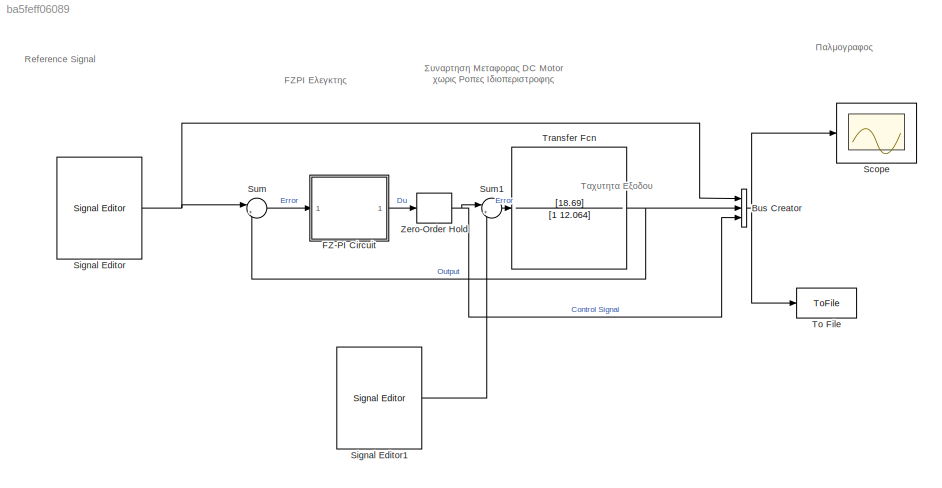
MODEL slx_ba5feff06089
KIND model
CONFIG AbsTol = auto
CONFIG EnableMultiTasking = on
CONFIG FixedStep = 1
CONFIG MaxStep = 1
CONFIG MinStep = auto
CONFIG RelTol = 1e-2
CONFIG SampleTimeConstraint = Unconstrained
CONFIG SolverName = ode15s
CONFIG StartTime = 0.0
CONFIG StopTime = 30
WORKSPACE source: mxarray member
WORKSPACE K = 5
WORKSPACE K1 = 5
WORKSPACE Kd = 12.5
WORKSPACE Ke = 2.5
WORKSPACE MaxError = 150
WORKSPACE Ts = 0.01
BLOCK [BusCreator] Bus Creator
  DisplayOption = bar
  InheritFromInputs = on
  Inputs = 3
  Ports = [3, 1]
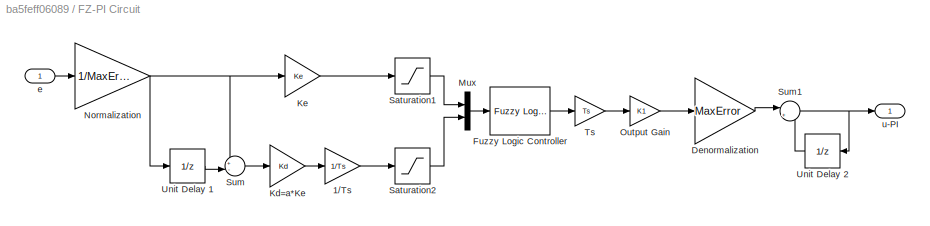
BLOCK [SubSystem] FZ-PI Circuit
  Ports = [1, 1]
  RequestExecContextInheritance = off
BLOCK [Gain] FZ-PI Circuit/1//Ts
  Gain = 1/Ts
BLOCK [Gain] FZ-PI Circuit/Denormalization
  Gain = MaxError
BLOCK [Reference] FZ-PI Circuit/Fuzzy Logic Controller  REF=fuzblock/Fuzzy Logic   (lib defined in mdl_858b3b3e7478)
Controller
  Ports = [1, 1]
  SourceBlock = fuzblock/Fuzzy Logic \nController
  SourceProductBaseCode = FL
  SourceType = Fuzzy Inference System
BLOCK [Gain] FZ-PI Circuit/Kd=a*Ke
  Gain = Kd
BLOCK [Gain] FZ-PI Circuit/Ke
  Gain = Ke
BLOCK [Mux] FZ-PI Circuit/Mux
  DisplayOption = bar
  Inputs = 2
  Ports = [2, 1]
BLOCK [Gain] FZ-PI Circuit/Normalization
  Gain = 1/MaxError
BLOCK [Gain] FZ-PI Circuit/Output Gain
  Gain = K1
BLOCK [Saturate] FZ-PI Circuit/Saturation1 
  LowerLimit = -1
  UpperLimit = 1
BLOCK [Saturate] FZ-PI Circuit/Saturation2
  LowerLimit = -1
  UpperLimit = 1
BLOCK [Sum] FZ-PI Circuit/Sum
  Inputs = +-|
  Ports = [2, 1]
BLOCK [Sum] FZ-PI Circuit/Sum1
  Inputs = |++
  Ports = [2, 1]
BLOCK [Gain] FZ-PI Circuit/Ts 
  Gain = Ts
BLOCK [UnitDelay] FZ-PI Circuit/Unit Delay 1
  HasFrameUpgradeWarning = on
  SampleTime = -1
BLOCK [UnitDelay] FZ-PI Circuit/Unit Delay 2
  HasFrameUpgradeWarning = on
  SampleTime = -1
BLOCK [Inport] FZ-PI Circuit/e
BLOCK [Outport] FZ-PI Circuit/u-PI
  VectorParamsAs1DForOutWhenUnconnected = off
BLOCK [Scope] Scope
  Floating = off
  NumInputPorts = 1
  Ports = [1]
  ScopeSpecificationString = Simulink.scopes.TimeScopeBlockCfg('CurrentConfiguration', extmgr.ConfigurationSet(extmgr.Configuration('Core','General UI',true,'DisplayFullSourceName',true),extmgr.Configuration('Core','Source UI',true),extmgr.Configuration('Sources','WiredSimulink',true),extmgr.Configuration('Visuals','Time Domain',true,'SerializedDisplays',{struct('MinYLimReal','-18.75009','MaxYLimReal','168.75079','YLabelReal'...<+2193ch>
BLOCK [Reference] Signal Editor  REF=SignalEditorBlockLib/Signal Editor
  Ports = [0, 1]
  SourceBlock = SignalEditorBlockLib/Signal Editor
  SourceProductBaseCode = SL
  SourceType = SignalEditor
  UserDataPersistent = on
BLOCK [Reference] Signal Editor1  REF=SignalEditorBlockLib/Signal Editor
  Ports = [0, 1]
  SourceBlock = SignalEditorBlockLib/Signal Editor
  SourceProductBaseCode = SL
  SourceType = SignalEditor
  UserDataPersistent = on
BLOCK [Sum] Sum
  Inputs = |+-
  Ports = [2, 1]
BLOCK [Sum] Sum1
  Inputs = |++
  Ports = [2, 1]
BLOCK [ToFile] To File
  Filename = FZPISimDataCase3.mat
  MatrixName = FZPISimData
  Ports = [1]
  SaveFormat = Timeseries
BLOCK [TransferFcn] Transfer Fcn
  ContinuousStateAttributes = 'RotationSpeed'
  Denominator = [1 12.064]
  Description = DC Motor Transfer Function
  Numerator = [18.69]
BLOCK [ZeroOrderHold] Zero-Order Hold
  SampleTime = 0.01
ANNOTATION (root): Ταχυτητα Εξοδου
ANNOTATION (root): FZPI Ελεγκτης
ANNOTATION (root): Reference Signal
ANNOTATION (root): Παλμογραφος
ANNOTATION (root): Συναρτηση Μεταφορας DC Motor χωρις Ροπες Ιδιοπεριστροφης
NET Bus Creator:1 -> Scope:1, To File:1
LINE FZ-PI Circuit/1//Ts:1 -> FZ-PI Circuit/Saturation2:1
LINE FZ-PI Circuit/Denormalization:1 -> FZ-PI Circuit/Sum1:1
LINE FZ-PI Circuit/Fuzzy Logic Controller:1 -> FZ-PI Circuit/Ts :1
LINE FZ-PI Circuit/Kd=a*Ke:1 -> FZ-PI Circuit/1//Ts:1
LINE FZ-PI Circuit/Ke:1 -> FZ-PI Circuit/Saturation1 :1
LINE FZ-PI Circuit/Mux:1 -> FZ-PI Circuit/Fuzzy Logic Controller:1
NET FZ-PI Circuit/Normalization:1 -> FZ-PI Circuit/Ke:1, FZ-PI Circuit/Sum:1, FZ-PI Circuit/Unit Delay 1:1
LINE FZ-PI Circuit/Output Gain:1 -> FZ-PI Circuit/Denormalization:1
LINE FZ-PI Circuit/Saturation1 :1 -> FZ-PI Circuit/Mux:1
LINE FZ-PI Circuit/Saturation2:1 -> FZ-PI Circuit/Mux:2
NET FZ-PI Circuit/Sum1:1 -> FZ-PI Circuit/Unit Delay 2:1, FZ-PI Circuit/u-PI:1
LINE FZ-PI Circuit/Sum:1 -> FZ-PI Circuit/Kd=a*Ke:1
LINE FZ-PI Circuit/Ts :1 -> FZ-PI Circuit/Output Gain:1
LINE FZ-PI Circuit/Unit Delay 1:1 -> FZ-PI Circuit/Sum:2
LINE FZ-PI Circuit/Unit Delay 2:1 -> FZ-PI Circuit/Sum1:2
LINE FZ-PI Circuit/e:1 -> FZ-PI Circuit/Normalization:1
LINE FZ-PI Circuit:1 -> Zero-Order Hold:1
LINE Signal Editor1:1 -> Sum1:2
NET Signal Editor:1 -> Bus Creator:1, Sum:1
LINE Sum1:1 -> Transfer Fcn:1
LINE Sum:1 -> FZ-PI Circuit:1
NET Transfer Fcn:1 -> Bus Creator:2, Sum:2
NET Zero-Order Hold:1 -> Bus Creator:3, Sum1:1
note: NET lines group one-source signal fan-out (src -> all destinations, sorted); 1:1 wires keep LINE
